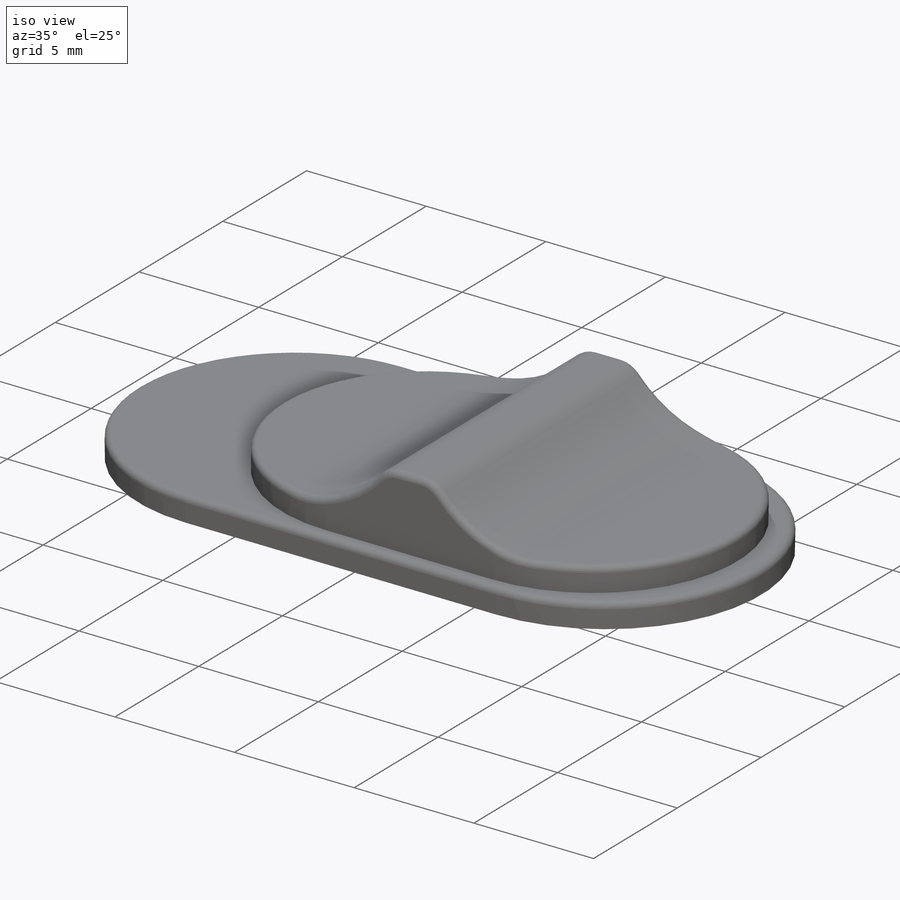
[diagram: iso view]
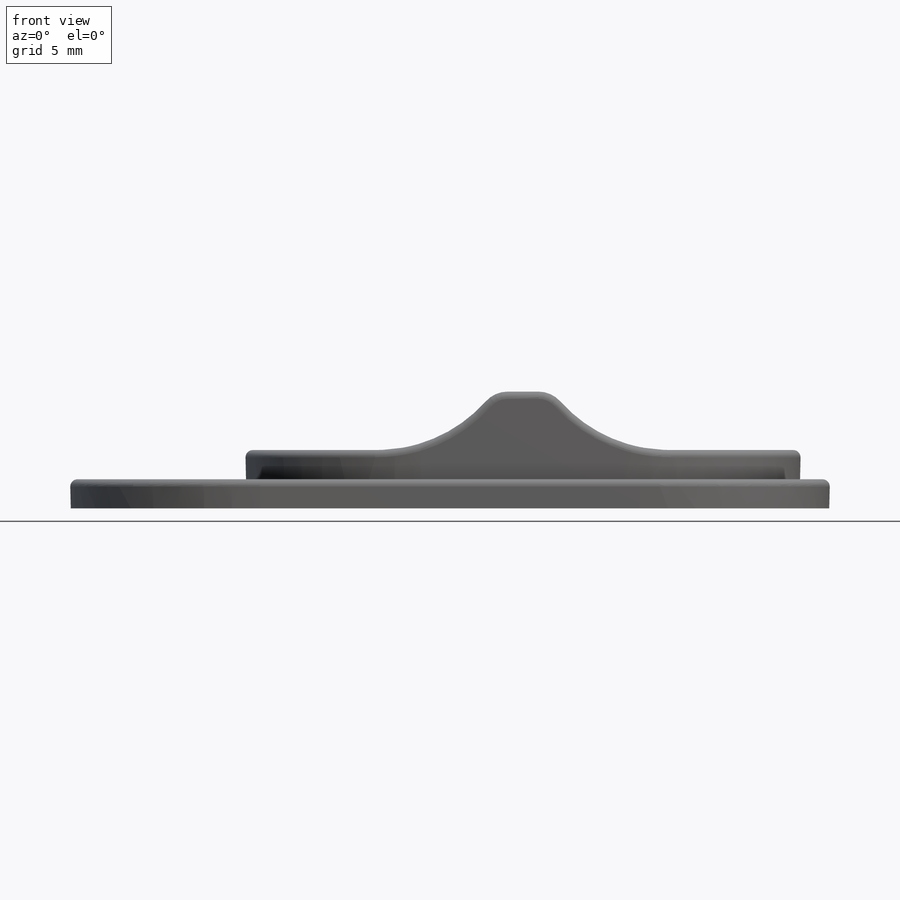
[diagram: front view]
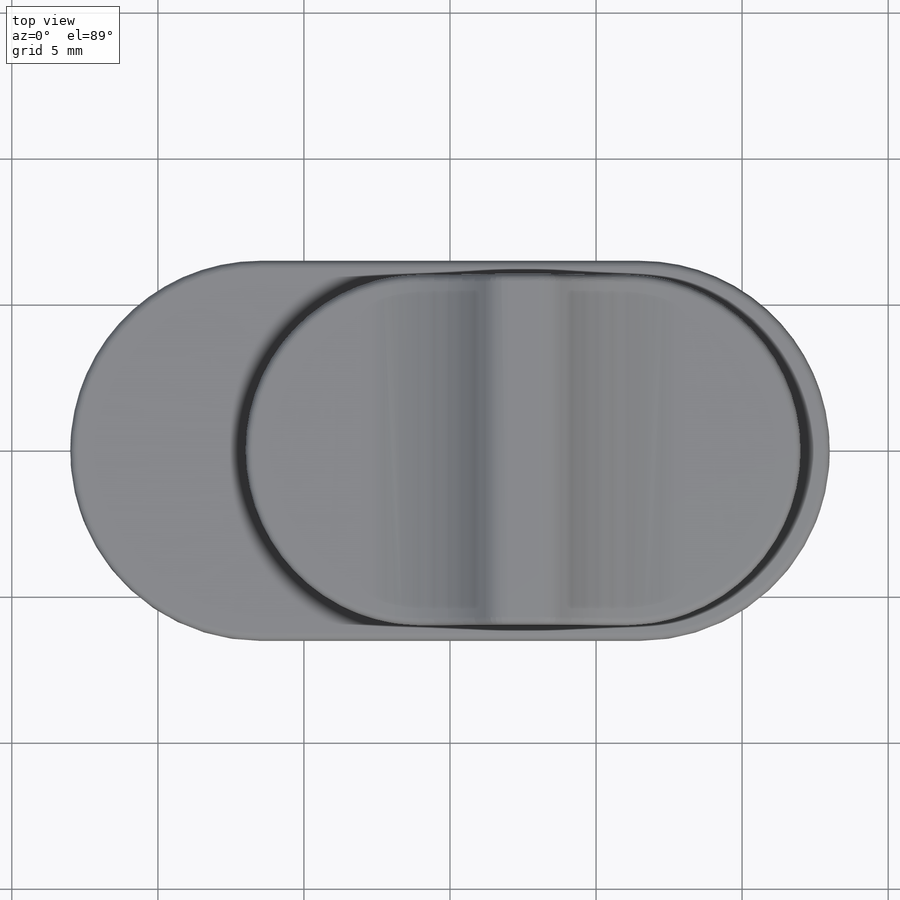
[diagram: top view]
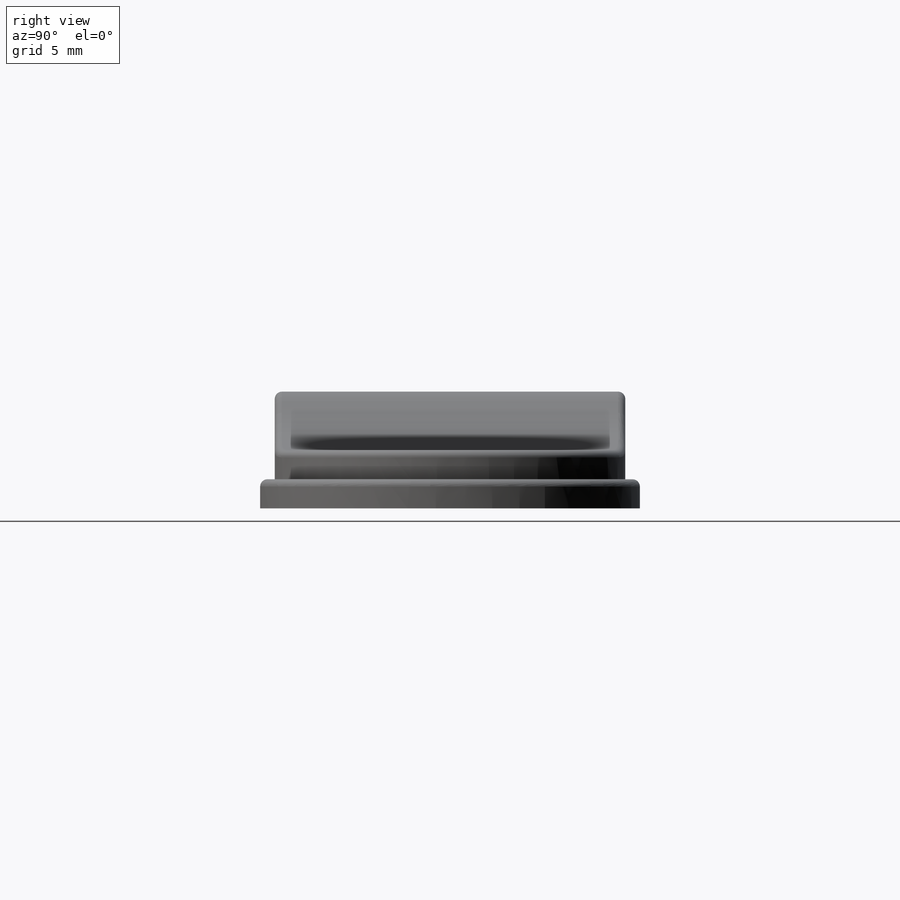
[diagram: right view]
SOLIDWORKS PART (.sldprt)
format: sldprt  version: not decoded by parser v0  size: 307,200 bytes
history: native  units: mm
features: sketch x3, fillet x3, extrude x2, material x1, cut_extrude x1 (+13 scaffold rows collapsed)
feature tree (23):
  scaffold x13  (default folders/planes/origin — collapsed)
  material  "Material <not specified>"
  sketch  "Sketch1"  dims[D1=13.0mm D2=13.0mm]
  extrude  "Boss-Extrude1"  Depth=1mm
  sketch  "Sketch2"  dims[D1=2.0mm D2=8.5mm D3=1.0mm D4=2.0mm D5=1.0mm D6=19.0mm]
  extrude  "Boss-Extrude2"  Depth=0.5mm
  sketch  "Sketch3"  dims[D1=5.5mm]
  cut_extrude  "Cut-Extrude1"  [1 undecoded]
  fillet  "Fillet1"  Radius=5mm
  fillet  "Fillet2"  Radius=1mm
  fillet  "Fillet3"  Radius=0.25mm
decode coverage: 8 of 9 modeling features carry decoded parameters
note: 1 parameter value undecoded
note: suppression state not decoded; provenance and decode notes live in map.json
